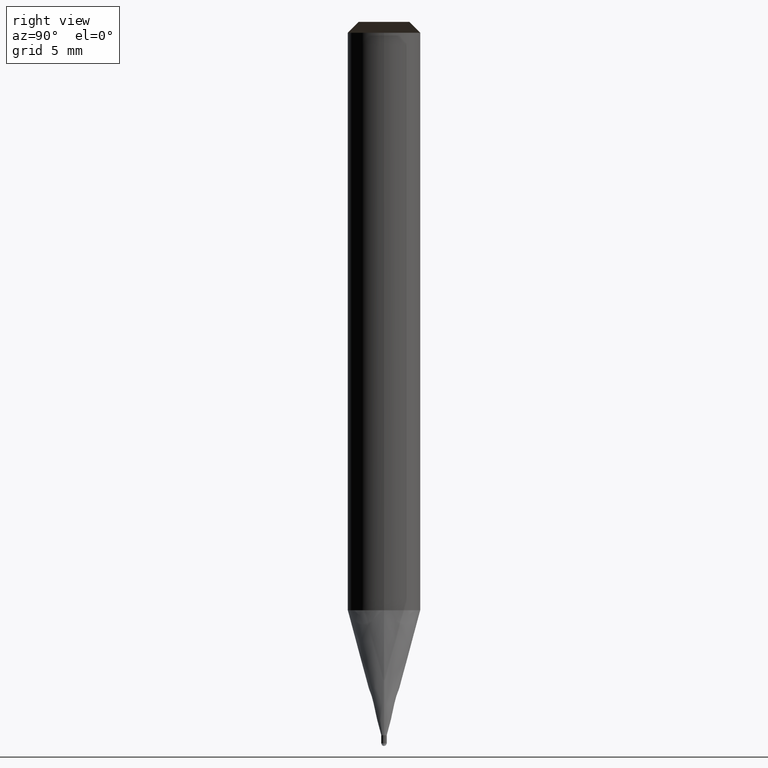
[diagram: clean part render]
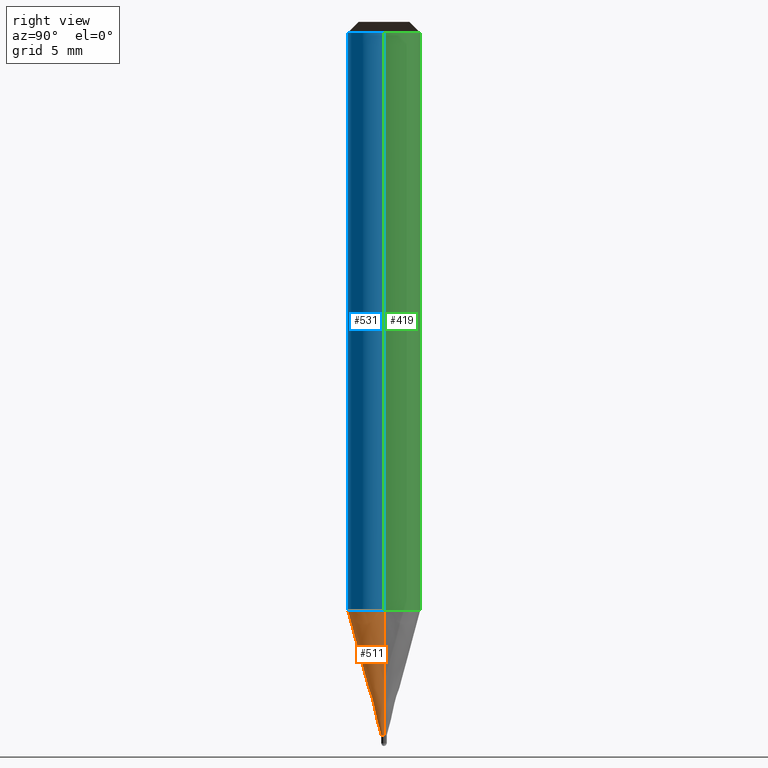
[diagram: same view with three faces highlighted in distinct colors, each labeled with its STEP entity id]
A machine part, right view with three faces highlighted in distinct colors.
Their STEP definitions:

[orange] entity #511 — the highlighted face is a freeform B-spline surface patch.
#198=CARTESIAN_POINT('',(0.15,0.0,-6.904293994002));
#202=CARTESIAN_POINT('',(-0.15,0.0,-6.904293994002));
#203=CARTESIAN_POINT('',(2.0,0.0,-0.0));
#207=CARTESIAN_POINT('',(-2.0,0.0,-0.0));
#219=CARTESIAN_POINT('',(-0.15,-0.15,-6.904293994002));
#220=CARTESIAN_POINT('',(0.0,-0.15,-6.904293994002));
#221=CARTESIAN_POINT('',(0.15,-0.15,-6.904293994002));
#222=CARTESIAN_POINT('',(-2.0,-2.0,-0.0));
#223=CARTESIAN_POINT('',(0.0,-2.0,-0.0));
#224=CARTESIAN_POINT('',(2.0,-2.0,-0.0));
#492=(
BOUNDED_SURFACE()
B_SPLINE_SURFACE(1,2,(
(#202,#219,#220,#221,#198),
(#207,#222,#223,#224,#203)
), .UNSPECIFIED.,.F.,.F.,.F.)
B_SPLINE_SURFACE_WITH_KNOTS((2,2),(3,2,3),(
0.0,1.0),(
0.0,0.5,1.0), .UNSPECIFIED.)
GEOMETRIC_REPRESENTATION_ITEM()
RATIONAL_B_SPLINE_SURFACE(((1.0,0.707106781187,1.0,0.707106781187,1.0),
(1.0,0.707106781187,1.0,0.707106781187,1.0)
))
REPRESENTATION_ITEM('')
SURFACE()
);
#493=(
BOUNDED_CURVE()
B_SPLINE_CURVE(1,(#207,#202),.UNSPECIFIED.,.F.,.F.)
B_SPLINE_CURVE_WITH_KNOTS((2,2),
(0.0,1.0),.UNSPECIFIED.)
CURVE()
GEOMETRIC_REPRESENTATION_ITEM()
RATIONAL_B_SPLINE_CURVE((1.0,1.0))
REPRESENTATION_ITEM('')
);
#494=(
BOUNDED_CURVE()
B_SPLINE_CURVE(2,(#202,#219,#220,#221,#198),.UNSPECIFIED.,.F.,.F.)
B_SPLINE_CURVE_WITH_KNOTS((3,2,3),
(0.0,0.5,1.0),.UNSPECIFIED.)
CURVE()
GEOMETRIC_REPRESENTATION_ITEM()
RATIONAL_B_SPLINE_CURVE((1.0,0.707106781187,1.0,0.707106781187,1.0))
REPRESENTATION_ITEM('')
);
#495=(
BOUNDED_CURVE()
B_SPLINE_CURVE(1,(#198,#203),.UNSPECIFIED.,.F.,.F.)
B_SPLINE_CURVE_WITH_KNOTS((2,2),
(0.0,1.0),.UNSPECIFIED.)
CURVE()
GEOMETRIC_REPRESENTATION_ITEM()
RATIONAL_B_SPLINE_CURVE((1.0,1.0))
REPRESENTATION_ITEM('')
);
#496=(
BOUNDED_CURVE()
B_SPLINE_CURVE(2,(#203,#224,#223,#222,#207),.UNSPECIFIED.,.F.,.F.)
B_SPLINE_CURVE_WITH_KNOTS((3,2,3),
(0.0,0.5,1.0),.UNSPECIFIED.)
CURVE()
GEOMETRIC_REPRESENTATION_ITEM()
RATIONAL_B_SPLINE_CURVE((1.0,0.707106781187,1.0,0.707106781187,1.0))
REPRESENTATION_ITEM('')
);
#497=VERTEX_POINT('',#198);
#498=VERTEX_POINT('',#202);
#499=VERTEX_POINT('',#203);
#500=VERTEX_POINT('',#207);
#501=EDGE_CURVE('',#500,#498,#493,.T.);
#502=EDGE_CURVE('',#498,#497,#494,.T.);
#503=EDGE_CURVE('',#497,#499,#495,.T.);
#504=EDGE_CURVE('',#499,#500,#496,.T.);
#505=ORIENTED_EDGE('',*,*,#501,.T.);
#506=ORIENTED_EDGE('',*,*,#502,.T.);
#507=ORIENTED_EDGE('',*,*,#503,.T.);
#508=ORIENTED_EDGE('',*,*,#504,.T.);
#509=EDGE_LOOP('',(#505,#506,#507,#508));
#510=FACE_OUTER_BOUND('',#509,.T.);
#511=ADVANCED_FACE('',(#510),#492,.T.);

[blue] entity #531 — the highlighted face is a freeform B-spline surface patch.
#203=CARTESIAN_POINT('',(2.0,0.0,-0.0));
#207=CARTESIAN_POINT('',(-2.0,0.0,-0.0));
#208=CARTESIAN_POINT('',(2.0,0.0,31.895));
#212=CARTESIAN_POINT('',(-2.0,0.0,31.895));
#222=CARTESIAN_POINT('',(-2.0,-2.0,-0.0));
#223=CARTESIAN_POINT('',(0.0,-2.0,-0.0));
#224=CARTESIAN_POINT('',(2.0,-2.0,-0.0));
#225=CARTESIAN_POINT('',(-2.0,-2.0,31.895));
#226=CARTESIAN_POINT('',(0.0,-2.0,31.895));
#227=CARTESIAN_POINT('',(2.0,-2.0,31.895));
#512=(
BOUNDED_SURFACE()
B_SPLINE_SURFACE(1,2,(
(#207,#222,#223,#224,#203),
(#212,#225,#226,#227,#208)
), .UNSPECIFIED.,.F.,.F.,.F.)
B_SPLINE_SURFACE_WITH_KNOTS((2,2),(3,2,3),(
0.0,1.0),(
0.0,0.5,1.0), .UNSPECIFIED.)
GEOMETRIC_REPRESENTATION_ITEM()
RATIONAL_B_SPLINE_SURFACE(((1.0,0.707106781187,1.0,0.707106781187,1.0),
(1.0,0.707106781187,1.0,0.707106781187,1.0)
))
REPRESENTATION_ITEM('')
SURFACE()
);
#513=(
BOUNDED_CURVE()
B_SPLINE_CURVE(1,(#212,#207),.UNSPECIFIED.,.F.,.F.)
B_SPLINE_CURVE_WITH_KNOTS((2,2),
(0.0,1.0),.UNSPECIFIED.)
CURVE()
GEOMETRIC_REPRESENTATION_ITEM()
RATIONAL_B_SPLINE_CURVE((1.0,1.0))
REPRESENTATION_ITEM('')
);
#514=(
BOUNDED_CURVE()
B_SPLINE_CURVE(2,(#207,#222,#223,#224,#203),.UNSPECIFIED.,.F.,.F.)
B_SPLINE_CURVE_WITH_KNOTS((3,2,3),
(0.0,0.5,1.0),.UNSPECIFIED.)
CURVE()
GEOMETRIC_REPRESENTATION_ITEM()
RATIONAL_B_SPLINE_CURVE((1.0,0.707106781187,1.0,0.707106781187,1.0))
REPRESENTATION_ITEM('')
);
#515=(
BOUNDED_CURVE()
B_SPLINE_CURVE(1,(#203,#208),.UNSPECIFIED.,.F.,.F.)
B_SPLINE_CURVE_WITH_KNOTS((2,2),
(0.0,1.0),.UNSPECIFIED.)
CURVE()
GEOMETRIC_REPRESENTATION_ITEM()
RATIONAL_B_SPLINE_CURVE((1.0,1.0))
REPRESENTATION_ITEM('')
);
#516=(
BOUNDED_CURVE()
B_SPLINE_CURVE(2,(#208,#227,#226,#225,#212),.UNSPECIFIED.,.F.,.F.)
B_SPLINE_CURVE_WITH_KNOTS((3,2,3),
(0.0,0.5,1.0),.UNSPECIFIED.)
CURVE()
GEOMETRIC_REPRESENTATION_ITEM()
RATIONAL_B_SPLINE_CURVE((1.0,0.707106781187,1.0,0.707106781187,1.0))
REPRESENTATION_ITEM('')
);
#517=VERTEX_POINT('',#203);
#518=VERTEX_POINT('',#207);
#519=VERTEX_POINT('',#208);
#520=VERTEX_POINT('',#212);
#521=EDGE_CURVE('',#520,#518,#513,.T.);
#522=EDGE_CURVE('',#518,#517,#514,.T.);
#523=EDGE_CURVE('',#517,#519,#515,.T.);
#524=EDGE_CURVE('',#519,#520,#516,.T.);
#525=ORIENTED_EDGE('',*,*,#521,.T.);
#526=ORIENTED_EDGE('',*,*,#522,.T.);
#527=ORIENTED_EDGE('',*,*,#523,.T.);
#528=ORIENTED_EDGE('',*,*,#524,.T.);
#529=EDGE_LOOP('',(#525,#526,#527,#528));
#530=FACE_OUTER_BOUND('',#529,.T.);
#531=ADVANCED_FACE('',(#530),#512,.T.);

[green] entity #419 — the highlighted face is a freeform B-spline surface patch.
#203=CARTESIAN_POINT('',(2.0,0.0,-0.0));
#204=CARTESIAN_POINT('',(2.0,2.0,-0.0));
#205=CARTESIAN_POINT('',(0.0,2.0,-0.0));
#206=CARTESIAN_POINT('',(-2.0,2.0,-0.0));
#207=CARTESIAN_POINT('',(-2.0,0.0,-0.0));
#208=CARTESIAN_POINT('',(2.0,0.0,31.895));
#209=CARTESIAN_POINT('',(2.0,2.0,31.895));
#210=CARTESIAN_POINT('',(0.0,2.0,31.895));
#211=CARTESIAN_POINT('',(-2.0,2.0,31.895));
#212=CARTESIAN_POINT('',(-2.0,0.0,31.895));
#400=(
BOUNDED_SURFACE()
B_SPLINE_SURFACE(1,2,(
(#203,#204,#205,#206,#207),
(#208,#209,#210,#211,#212)
), .UNSPECIFIED.,.F.,.F.,.F.)
B_SPLINE_SURFACE_WITH_KNOTS((2,2),(3,2,3),(
0.0,1.0),(
0.0,0.5,1.0), .UNSPECIFIED.)
GEOMETRIC_REPRESENTATION_ITEM()
RATIONAL_B_SPLINE_SURFACE(((1.0,0.707106781187,1.0,0.707106781187,1.0),
(1.0,0.707106781187,1.0,0.707106781187,1.0)
))
REPRESENTATION_ITEM('')
SURFACE()
);
#401=(
BOUNDED_CURVE()
B_SPLINE_CURVE(2,(#208,#209,#210,#211,#212),.UNSPECIFIED.,.F.,.F.)
B_SPLINE_CURVE_WITH_KNOTS((3,2,3),
(0.0,0.5,1.0),.UNSPECIFIED.)
CURVE()
GEOMETRIC_REPRESENTATION_ITEM()
RATIONAL_B_SPLINE_CURVE((1.0,0.707106781187,1.0,0.707106781187,1.0))
REPRESENTATION_ITEM('')
);
#402=(
BOUNDED_CURVE()
B_SPLINE_CURVE(1,(#212,#207),.UNSPECIFIED.,.F.,.F.)
B_SPLINE_CURVE_WITH_KNOTS((2,2),
(0.0,1.0),.UNSPECIFIED.)
CURVE()
GEOMETRIC_REPRESENTATION_ITEM()
RATIONAL_B_SPLINE_CURVE((1.0,1.0))
REPRESENTATION_ITEM('')
);
#403=(
BOUNDED_CURVE()
B_SPLINE_CURVE(2,(#207,#206,#205,#204,#203),.UNSPECIFIED.,.F.,.F.)
B_SPLINE_CURVE_WITH_KNOTS((3,2,3),
(0.0,0.5,1.0),.UNSPECIFIED.)
CURVE()
GEOMETRIC_REPRESENTATION_ITEM()
RATIONAL_B_SPLINE_CURVE((1.0,0.707106781187,1.0,0.707106781187,1.0))
REPRESENTATION_ITEM('')
);
#404=(
BOUNDED_CURVE()
B_SPLINE_CURVE(1,(#203,#208),.UNSPECIFIED.,.F.,.F.)
B_SPLINE_CURVE_WITH_KNOTS((2,2),
(0.0,1.0),.UNSPECIFIED.)
CURVE()
GEOMETRIC_REPRESENTATION_ITEM()
RATIONAL_B_SPLINE_CURVE((1.0,1.0))
REPRESENTATION_ITEM('')
);
#405=VERTEX_POINT('',#203);
#406=VERTEX_POINT('',#207);
#407=VERTEX_POINT('',#208);
#408=VERTEX_POINT('',#212);
#409=EDGE_CURVE('',#407,#408,#401,.T.);
#410=EDGE_CURVE('',#408,#406,#402,.T.);
#411=EDGE_CURVE('',#406,#405,#403,.T.);
#412=EDGE_CURVE('',#405,#407,#404,.T.);
#413=ORIENTED_EDGE('',*,*,#409,.T.);
#414=ORIENTED_EDGE('',*,*,#410,.T.);
#415=ORIENTED_EDGE('',*,*,#411,.T.);
#416=ORIENTED_EDGE('',*,*,#412,.T.);
#417=EDGE_LOOP('',(#413,#414,#415,#416));
#418=FACE_OUTER_BOUND('',#417,.T.);
#419=ADVANCED_FACE('',(#418),#400,.T.);